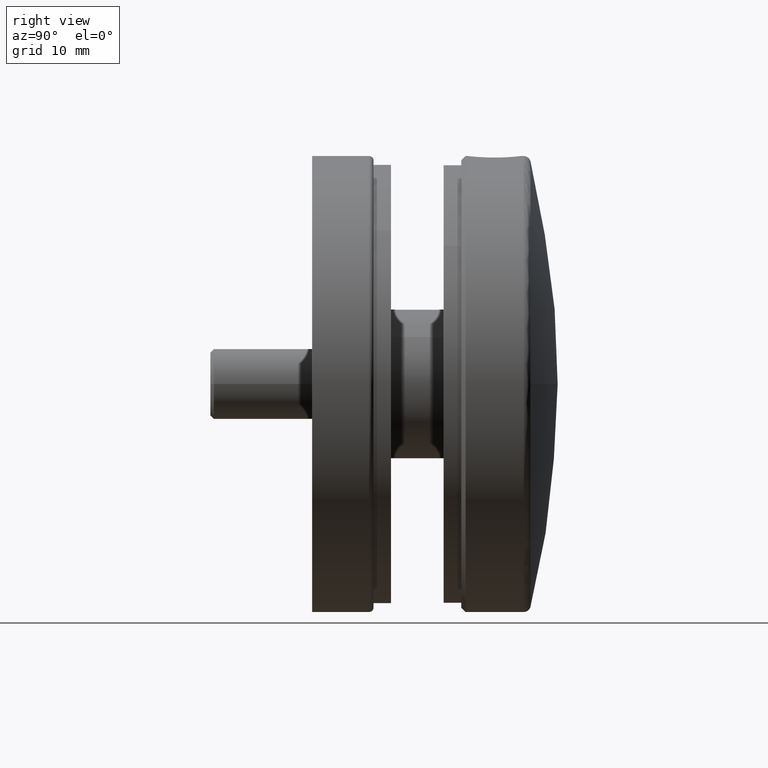
[diagram: clean part render]
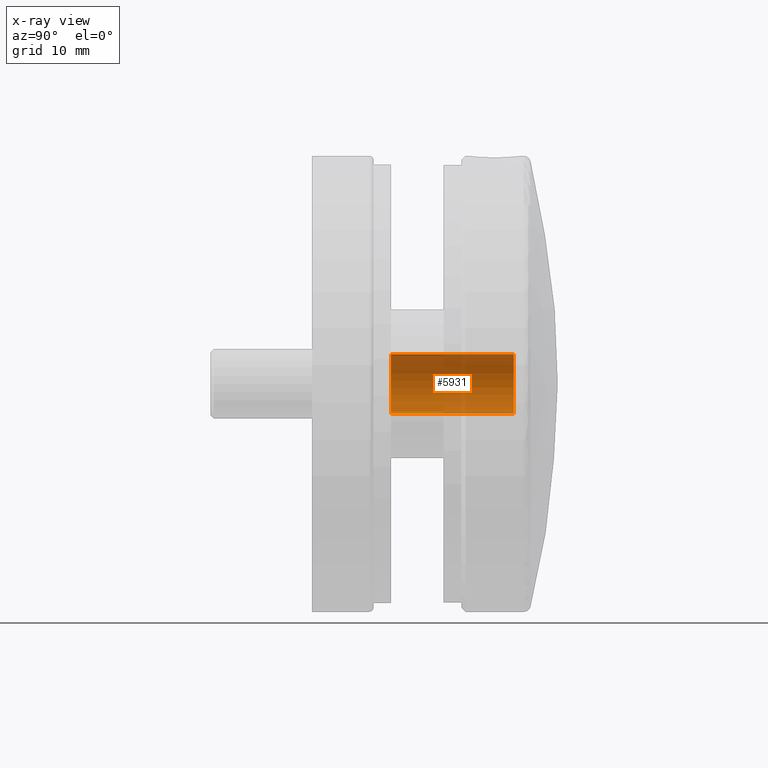
[diagram: x-ray — body ghosted, one internal face saturated and labeled with its STEP entity id]
A machine part, right view, then the same camera in x-ray: the body is ghosted and one INTERNAL B-rep face — a face not visible from any outside direction — is saturated and labeled: STEP entity #5931.
In plain terms, the highlighted cylindrical surface (edge-blend (fillet) strip) has radius 3.4 mm, axis along (-0, -1, -0).
Its self-contained STEP definition (entity closure, byte-faithful):
#209 = VERTEX_POINT ( 'NONE', #5419 ) ;
#297 = CARTESIAN_POINT ( 'NONE',  ( 26.00000000000000000, -8.000000000000000000, 0.0000000000000000000 ) ) ;
#971 = ORIENTED_EDGE ( 'NONE', *, *, #4460, .F. ) ;
#1214 = CARTESIAN_POINT ( 'NONE',  ( 26.00000000000000000, -8.000000000000000000, -3.399999999999996800 ) ) ;
#1803 = DIRECTION ( 'NONE',  ( 0.0000000000000000000, 0.0000000000000000000, -1.000000000000000000 ) ) ;
#2044 = VERTEX_POINT ( 'NONE', #4950 ) ;
#2166 = EDGE_CURVE ( 'NONE', #3185, #2044, #3527, .T. ) ;
#2240 = ORIENTED_EDGE ( 'NONE', *, *, #2166, .T. ) ;
#2588 = FACE_OUTER_BOUND ( 'NONE', #4941, .T. ) ;
#2707 = EDGE_CURVE ( 'NONE', #2044, #4136, #8814, .T. ) ;
#2806 = DIRECTION ( 'NONE',  ( -0.0000000000000000000, -1.000000000000000000, -0.0000000000000000000 ) ) ;
#2845 = LINE ( 'NONE', #1214, #14247 ) ;
#2956 = CARTESIAN_POINT ( 'NONE',  ( 26.00000000000000000, -8.000000000000000000, 3.399999999999996800 ) ) ;
#3054 = AXIS2_PLACEMENT_3D ( 'NONE', #10890, #2806, #1803 ) ;
#3123 = CIRCLE ( 'NONE', #3713, 3.399999999999996800 ) ;
#3185 = VERTEX_POINT ( 'NONE', #9355 ) ;
#3527 = LINE ( 'NONE', #2956, #7775 ) ;
#3713 = AXIS2_PLACEMENT_3D ( 'NONE', #13751, #5927, #10285 ) ;
#4136 = VERTEX_POINT ( 'NONE', #4754 ) ;
#4460 = EDGE_CURVE ( 'NONE', #3185, #209, #3123, .T. ) ;
#4754 = CARTESIAN_POINT ( 'NONE',  ( 26.00000000000000000, -8.000000000000000000, -3.399999999999996800 ) ) ;
#4941 = EDGE_LOOP ( 'NONE', ( #971, #2240, #13817, #14661 ) ) ;
#4950 = CARTESIAN_POINT ( 'NONE',  ( 26.00000000000000000, -8.000000000000000000, 3.399999999999996800 ) ) ;
#4961 = DIRECTION ( 'NONE',  ( -0.0000000000000000000, -1.000000000000000000, -0.0000000000000000000 ) ) ;
#5419 = CARTESIAN_POINT ( 'NONE',  ( 26.00000000000000000, 6.000000000000000000, -3.399999999999996800 ) ) ;
#5927 = DIRECTION ( 'NONE',  ( -0.0000000000000000000, -1.000000000000000000, -0.0000000000000000000 ) ) ;
#5931 = ADVANCED_FACE ( 'NONE', ( #2588 ), #9128, .F. ) ;
#5934 = DIRECTION ( 'NONE',  ( 0.0000000000000000000, 0.0000000000000000000, -1.000000000000000000 ) ) ;
#6570 = AXIS2_PLACEMENT_3D ( 'NONE', #297, #11738, #5934 ) ;
#7775 = VECTOR ( 'NONE', #9678, 1000.000000000000000 ) ;
#8814 = CIRCLE ( 'NONE', #6570, 3.399999999999996800 ) ;
#9128 = CYLINDRICAL_SURFACE ( 'NONE', #3054, 3.399999999999996800 ) ;
#9355 = CARTESIAN_POINT ( 'NONE',  ( 26.00000000000000000, 6.000000000000000000, 3.399999999999996800 ) ) ;
#9678 = DIRECTION ( 'NONE',  ( -0.0000000000000000000, -1.000000000000000000, -0.0000000000000000000 ) ) ;
#10285 = DIRECTION ( 'NONE',  ( 0.0000000000000000000, 0.0000000000000000000, -1.000000000000000000 ) ) ;
#10890 = CARTESIAN_POINT ( 'NONE',  ( 26.00000000000000000, -8.000000000000000000, 0.0000000000000000000 ) ) ;
#11738 = DIRECTION ( 'NONE',  ( -0.0000000000000000000, -1.000000000000000000, -0.0000000000000000000 ) ) ;
#12649 = EDGE_CURVE ( 'NONE', #209, #4136, #2845, .T. ) ;
#13751 = CARTESIAN_POINT ( 'NONE',  ( 26.00000000000000000, 6.000000000000000000, 0.0000000000000000000 ) ) ;
#13817 = ORIENTED_EDGE ( 'NONE', *, *, #2707, .T. ) ;
#14247 = VECTOR ( 'NONE', #4961, 1000.000000000000000 ) ;
#14661 = ORIENTED_EDGE ( 'NONE', *, *, #12649, .F. ) ;